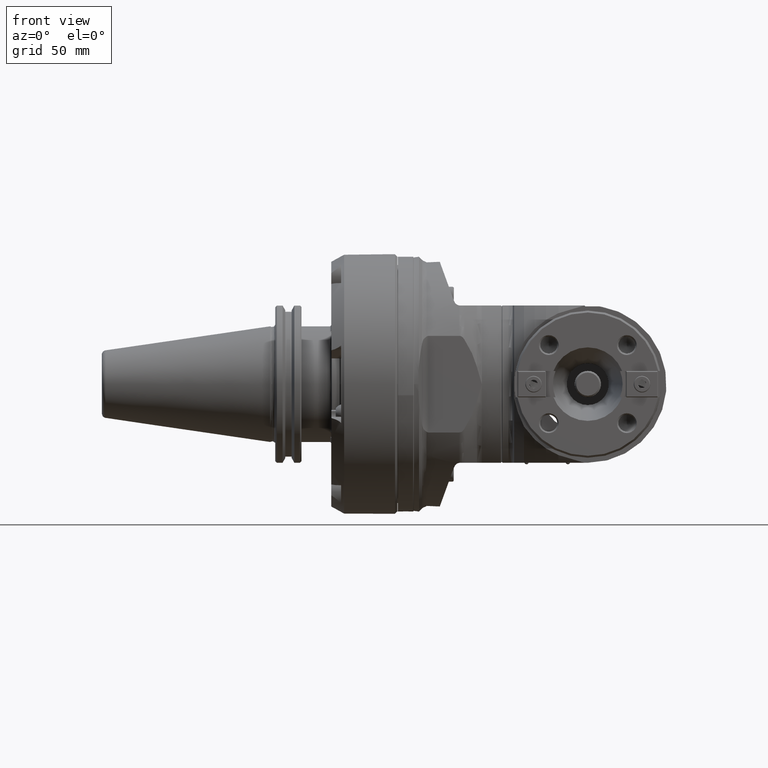
[diagram: clean part render]
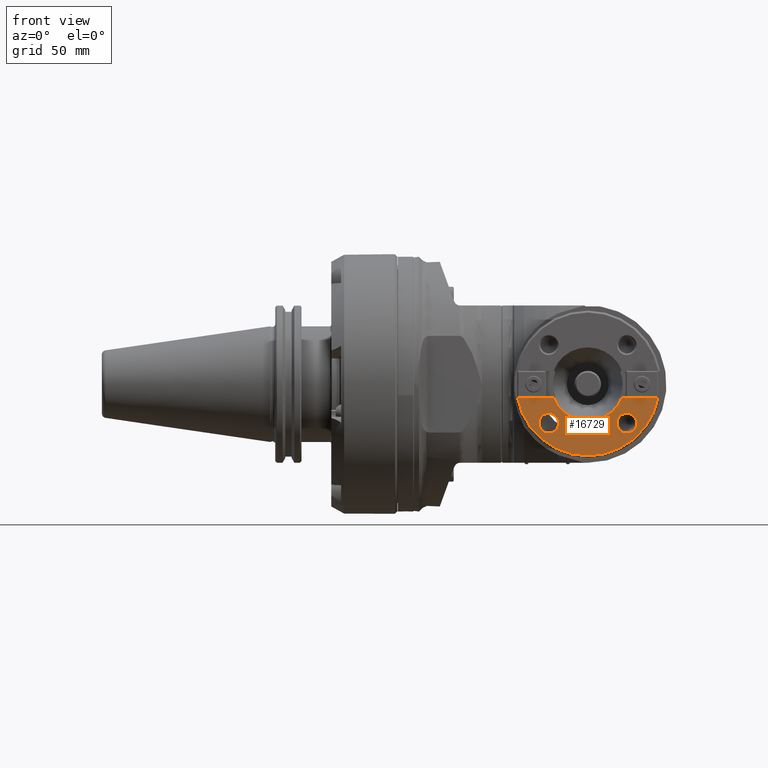
[diagram: same view with one face highlighted and labeled with its STEP entity id]
A machine part, front view. The second image highlights one B-rep face of the part: STEP entity #16729.
In plain terms, the highlighted planar face has unit normal (0, 1, 0).
Its self-contained STEP definition (entity closure, byte-faithful):
#617=FACE_BOUND('',#2938,.T.);
#618=FACE_BOUND('',#2939,.T.);
#1122=PLANE('',#18511);
#1959=FACE_OUTER_BOUND('',#2937,.T.);
#2937=EDGE_LOOP('',(#14036,#14037,#14038,#14039,#14040,#14041,#14042,#14043));
#2938=EDGE_LOOP('',(#14044));
#2939=EDGE_LOOP('',(#14045));
#3936=LINE('',#41724,#5159);
#3937=LINE('',#41732,#5160);
#3938=LINE('',#41734,#5161);
#3939=LINE('',#41738,#5162);
#3940=LINE('',#41740,#5163);
#3941=LINE('',#41741,#5164);
#5159=VECTOR('',#22539,0.549984940064201);
#5160=VECTOR('',#22550,18.5);
#5161=VECTOR('',#22551,2.745527654477);
#5162=VECTOR('',#22554,4.94552758566);
#5163=VECTOR('',#22555,16.3000000058);
#5164=VECTOR('',#22556,0.549985003080301);
#6219=CIRCLE('',#18509,43.28629946162);
#6221=CIRCLE('',#18512,22.22499995537);
#6222=CIRCLE('',#18513,6.);
#6223=CIRCLE('',#18514,6.);
#7511=VERTEX_POINT('',#41721);
#7512=VERTEX_POINT('',#41723);
#7513=VERTEX_POINT('',#41727);
#7514=VERTEX_POINT('',#41731);
#7515=VERTEX_POINT('',#41733);
#7516=VERTEX_POINT('',#41735);
#7517=VERTEX_POINT('',#41737);
#7518=VERTEX_POINT('',#41739);
#7519=VERTEX_POINT('',#41742);
#7520=VERTEX_POINT('',#41744);
#9791=EDGE_CURVE('',#7512,#7511,#3936,.T.);
#9793=EDGE_CURVE('',#7513,#7512,#6219,.T.);
#9795=EDGE_CURVE('',#7514,#7511,#3937,.T.);
#9796=EDGE_CURVE('',#7514,#7515,#3938,.T.);
#9797=EDGE_CURVE('',#7515,#7516,#6221,.T.);
#9798=EDGE_CURVE('',#7516,#7517,#3939,.T.);
#9799=EDGE_CURVE('',#7518,#7517,#3940,.T.);
#9800=EDGE_CURVE('',#7518,#7513,#3941,.T.);
#9801=EDGE_CURVE('',#7519,#7519,#6222,.T.);
#9802=EDGE_CURVE('',#7520,#7520,#6223,.T.);
#14036=ORIENTED_EDGE('',*,*,#9793,.T.);
#14037=ORIENTED_EDGE('',*,*,#9791,.T.);
#14038=ORIENTED_EDGE('',*,*,#9795,.F.);
#14039=ORIENTED_EDGE('',*,*,#9796,.T.);
#14040=ORIENTED_EDGE('',*,*,#9797,.T.);
#14041=ORIENTED_EDGE('',*,*,#9798,.T.);
#14042=ORIENTED_EDGE('',*,*,#9799,.F.);
#14043=ORIENTED_EDGE('',*,*,#9800,.T.);
#14044=ORIENTED_EDGE('',*,*,#9801,.T.);
#14045=ORIENTED_EDGE('',*,*,#9802,.T.);
#16729=ADVANCED_FACE('',(#1959,#617,#618),#1122,.F.);
#18509=AXIS2_PLACEMENT_3D('',#41728,#22544,#22545);
#18511=AXIS2_PLACEMENT_3D('',#41730,#22548,#22549);
#18512=AXIS2_PLACEMENT_3D('',#41736,#22552,#22553);
#18513=AXIS2_PLACEMENT_3D('',#41743,#22557,#22558);
#18514=AXIS2_PLACEMENT_3D('',#41745,#22559,#22560);
#22539=DIRECTION('',(-0.999999999999999,-1.808703761867E-13,5.13759961932799E-8));
#22544=DIRECTION('center_axis',(0.,-1.,-4.660711708262E-9));
#22545=DIRECTION('ref_axis',(-7.031057842691E-9,4.660711708262E-9,-1.));
#22548=DIRECTION('center_axis',(0.,1.,4.660711712401E-9));
#22549=DIRECTION('ref_axis',(7.031056736828E-9,-4.660711712401E-9,1.));
#22550=DIRECTION('',(1.,0.,-4.394408584766E-9));
#22551=DIRECTION('',(-0.999999999999999,3.715743674128E-8,1.587164801501E-8));
#22552=DIRECTION('center_axis',(0.,1.,4.660711595067E-9));
#22553=DIRECTION('ref_axis',(-7.031056486068E-9,4.660711595067E-9,-1.));
#22554=DIRECTION('',(-1.,-2.062808348852E-8,1.061781592666E-8));
#22555=DIRECTION('',(1.,0.,-4.394410450865E-9));
#22556=DIRECTION('',(-0.999999999999999,1.808703554629E-13,5.31338159993199E-8));
#22557=DIRECTION('center_axis',(0.,1.,4.660715073139E-9));
#22558=DIRECTION('ref_axis',(-7.031057217925E-9,4.660715073139E-9,-1.));
#22559=DIRECTION('center_axis',(0.,1.,4.660716690634E-9));
#22560=DIRECTION('ref_axis',(-7.031057217925E-9,4.660716690634E-9,-1.));
#41721=CARTESIAN_POINT('',(134.999999974838,-90.49999996295,-7.95000069270988));
#41723=CARTESIAN_POINT('',(135.5499849157,-90.49999996295,-7.950000720966));
#41724=CARTESIAN_POINT('',(135.5499849157,-90.49999996295,-7.950000720966));
#41727=CARTESIAN_POINT('',(50.45001497253,-90.49999996295,-7.950000122623));
#41728=CARTESIAN_POINT('Origin',(93.,-90.5,-4.217943683216E-7));
#41730=CARTESIAN_POINT('Origin',(92.99999970949,-90.49999980743,-41.3181501526));
#41731=CARTESIAN_POINT('',(116.499999974861,-90.4999999629499,-7.95000061141325));
#41732=CARTESIAN_POINT('',(116.4999999756,-90.49999996295,-7.950000611413));
#41733=CARTESIAN_POINT('',(113.754472315217,-90.4999997588093,-7.95000056603401));
#41734=CARTESIAN_POINT('',(116.4999999756,-90.49999996295,-7.950000611413));
#41735=CARTESIAN_POINT('',(72.2455275729858,-90.4999997588091,-7.95000027417983));
#41736=CARTESIAN_POINT('Origin',(93.,-90.49999969395,-4.217944233238E-7));
#41737=CARTESIAN_POINT('',(67.2999999807923,-90.4999999629487,-7.95000022347479));
#41738=CARTESIAN_POINT('',(72.24552756707,-90.49999986093,-7.950000275985));
#41739=CARTESIAN_POINT('',(50.9999999748852,-90.4999999629499,-7.9500001518459));
#41740=CARTESIAN_POINT('',(50.99999997561,-90.49999996295,-7.950000151846));
#41741=CARTESIAN_POINT('',(50.99999997561,-90.49999996295,-7.950000151846));
#41742=CARTESIAN_POINT('',(116.5820108764,-90.49999991806,-17.5820115876));
#41743=CARTESIAN_POINT('Origin',(116.5820108342,-90.49999989009,-23.5820115876));
#41744=CARTESIAN_POINT('',(69.4179888763763,-90.4999999180548,-17.5820112559886));
#41745=CARTESIAN_POINT('Origin',(69.41798883419,-90.49999989009,-23.58201125599));